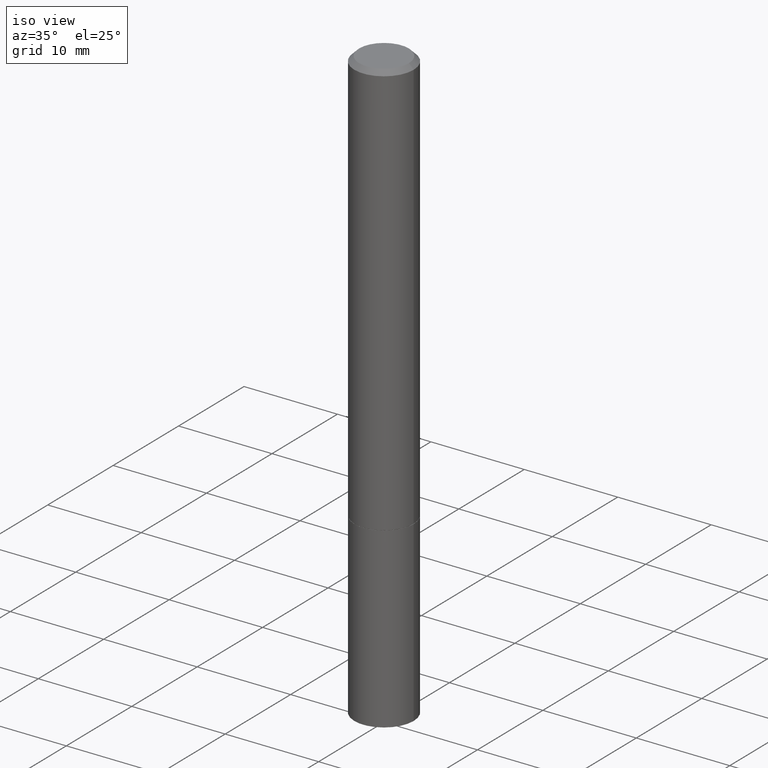
[diagram: clean part render]
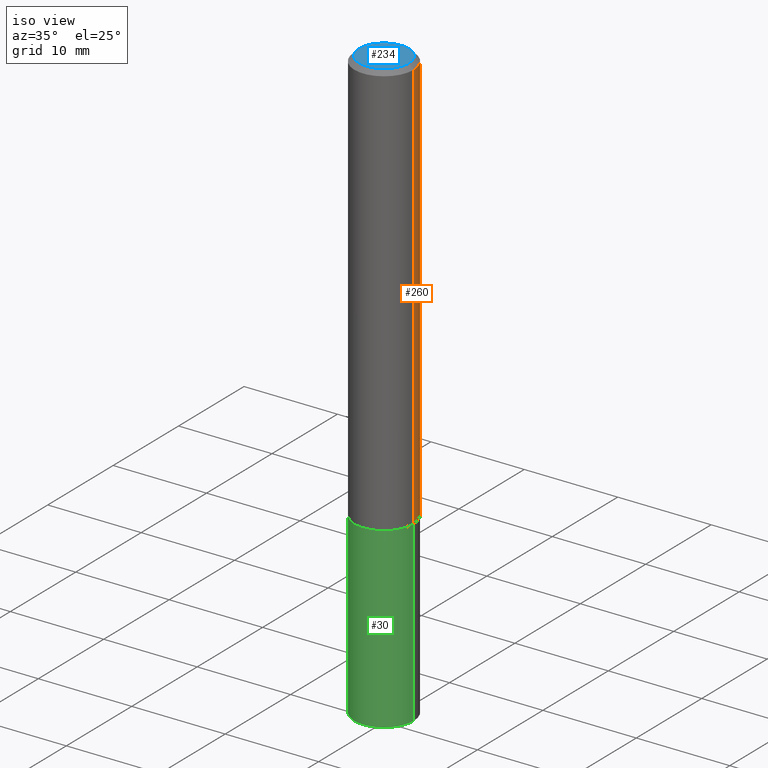
[diagram: same view with three faces highlighted in distinct colors, each labeled with its STEP entity id]
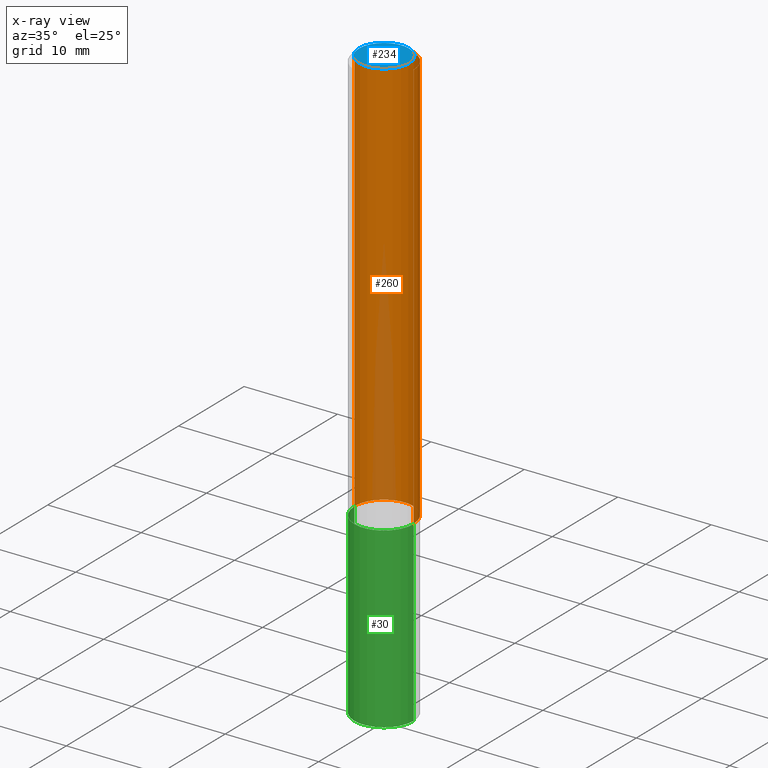
[diagram: x-ray of the same camera — body ghosted, the three highlighted faces saturated]
A machine part, iso view with three faces highlighted in distinct colors.
The next image is the same camera in x-ray (body ghosted, the three faces saturated) — at least one of them is partly hidden behind the body in this view.
Their STEP definitions:

[orange] entity #260 — the highlighted cylindrical surface (edge-blend (fillet) strip) has radius 3.175 mm, axis along (-0, 0, 1).
#7 = LINE ( 'NONE', #36, #279 ) ;
#11 = AXIS2_PLACEMENT_3D ( 'NONE', #98, #213, #101 ) ;
#33 = ORIENTED_EDGE ( 'NONE', *, *, #348, .F. ) ;
#36 = CARTESIAN_POINT ( 'NONE',  ( -0.1249999999999999029, 8.881784197001245421E-16, -6.148668862818627323E-30 ) ) ;
#48 = EDGE_LOOP ( 'NONE', ( #162, #124, #33, #360 ) ) ;
#52 = CARTESIAN_POINT ( 'NONE',  ( 0.1249999999999997918, -9.273918764983031658E-16, -0.02000000000000003511 ) ) ;
#69 = VERTEX_POINT ( 'NONE', #350 ) ;
#72 = EDGE_CURVE ( 'NONE', #69, #93, #330, .T. ) ;
#81 = DIRECTION ( 'NONE',  ( 1.000000000000000000, -6.982962677686266711E-15, 4.876176775795935793E-29 ) ) ;
#92 = AXIS2_PLACEMENT_3D ( 'NONE', #167, #283, #278 ) ;
#93 = VERTEX_POINT ( 'NONE', #106 ) ;
#98 = CARTESIAN_POINT ( 'NONE',  ( 4.277124942017804562E-29, -6.106600861636661664E-15, -1.749000000000000110 ) ) ;
#101 = DIRECTION ( 'NONE',  ( 1.000000000000000000, -6.982962677686270655E-15, 0.000000000000000000 ) ) ;
#106 = CARTESIAN_POINT ( 'NONE',  ( -0.1250000000000000278, -2.200036824506634488E-15, -1.749000000000000110 ) ) ;
#113 = CYLINDRICAL_SURFACE ( 'NONE', #226, 0.1249999999999999029 ) ;
#124 = ORIENTED_EDGE ( 'NONE', *, *, #274, .T. ) ;
#162 = ORIENTED_EDGE ( 'NONE', *, *, #72, .T. ) ;
#167 = CARTESIAN_POINT ( 'NONE',  ( 4.890937612370281041E-31, -6.982962677686302702E-17, -0.02000000000000003511 ) ) ;
#188 = DIRECTION ( 'NONE',  ( -2.445468806185136877E-29, 3.491481338843145188E-15, 1.000000000000000000 ) ) ;
#200 = VECTOR ( 'NONE', #250, 39.37007874015748143 ) ;
#206 = VERTEX_POINT ( 'NONE', #323 ) ;
#213 = DIRECTION ( 'NONE',  ( -2.445468806185136597E-29, 3.491481338843145583E-15, 1.000000000000000000 ) ) ;
#224 = CARTESIAN_POINT ( 'NONE',  ( 0.000000000000000000, 0.000000000000000000, 0.000000000000000000 ) ) ;
#226 = AXIS2_PLACEMENT_3D ( 'NONE', #224, #337, #81 ) ;
#229 = CARTESIAN_POINT ( 'NONE',  ( 0.1249999999999999029, -8.728703347107826486E-16, 6.095220969744914837E-30 ) ) ;
#232 = CIRCLE ( 'NONE', #92, 0.1249999999999997918 ) ;
#250 = DIRECTION ( 'NONE',  ( -2.445468806185136877E-29, 3.491481338843145188E-15, 1.000000000000000000 ) ) ;
#260 = ADVANCED_FACE ( 'NONE', ( #316 ), #113, .T. ) ;
#274 = EDGE_CURVE ( 'NONE', #93, #206, #7, .T. ) ;
#278 = DIRECTION ( 'NONE',  ( 1.000000000000000000, -6.982962677686266711E-15, 0.000000000000000000 ) ) ;
#279 = VECTOR ( 'NONE', #188, 39.37007874015748143 ) ;
#283 = DIRECTION ( 'NONE',  ( -2.445468806185136597E-29, 3.491481338843145583E-15, 1.000000000000000000 ) ) ;
#311 = LINE ( 'NONE', #229, #200 ) ;
#315 = EDGE_CURVE ( 'NONE', #69, #344, #311, .T. ) ;
#316 = FACE_OUTER_BOUND ( 'NONE', #48, .T. ) ;
#323 = CARTESIAN_POINT ( 'NONE',  ( -0.1249999999999997918, 8.030407079339188573E-16, -0.02000000000000003511 ) ) ;
#330 = CIRCLE ( 'NONE', #11, 0.1250000000000000000 ) ;
#337 = DIRECTION ( 'NONE',  ( -2.445468806185136597E-29, 3.491481338843145583E-15, 1.000000000000000000 ) ) ;
#344 = VERTEX_POINT ( 'NONE', #52 ) ;
#348 = EDGE_CURVE ( 'NONE', #344, #206, #232, .T. ) ;
#350 = CARTESIAN_POINT ( 'NONE',  ( 0.1250000000000000000, -6.979471196347445792E-15, -1.749000000000000110 ) ) ;
#360 = ORIENTED_EDGE ( 'NONE', *, *, #315, .F. ) ;

[blue] entity #234 — the highlighted planar face has unit normal (0, -0, -1).
#5 = VERTEX_POINT ( 'NONE', #194 ) ;
#9 = VERTEX_POINT ( 'NONE', #284 ) ;
#34 = DIRECTION ( 'NONE',  ( -1.000000000000000000, 6.982962677686265922E-15, -4.876176775795935793E-29 ) ) ;
#90 = AXIS2_PLACEMENT_3D ( 'NONE', #347, #147, #34 ) ;
#102 = ORIENTED_EDGE ( 'NONE', *, *, #343, .T. ) ;
#114 = DIRECTION ( 'NONE',  ( 1.000000000000000000, -6.982962677686265922E-15, 4.876176775795935793E-29 ) ) ;
#115 = DIRECTION ( 'NONE',  ( 1.000000000000000000, -6.982962677686265922E-15, 4.876176775795935793E-29 ) ) ;
#117 = FACE_OUTER_BOUND ( 'NONE', #290, .T. ) ;
#140 = AXIS2_PLACEMENT_3D ( 'NONE', #202, #286, #115 ) ;
#147 = DIRECTION ( 'NONE',  ( 2.438088387897960049E-29, -3.491481338843145188E-15, -1.000000000000000000 ) ) ;
#178 = CIRCLE ( 'NONE', #244, 0.1049999999999998018 ) ;
#180 = PLANE ( 'NONE',  #90 ) ;
#194 = CARTESIAN_POINT ( 'NONE',  ( 0.1049999999999998018, -8.238720831321562839E-16, 5.444276250344140956E-30 ) ) ;
#196 = CARTESIAN_POINT ( 'NONE',  ( 0.000000000000000000, 0.000000000000000000, 0.000000000000000000 ) ) ;
#202 = CARTESIAN_POINT ( 'NONE',  ( 0.000000000000000000, 0.000000000000000000, 0.000000000000000000 ) ) ;
#216 = CIRCLE ( 'NONE', #140, 0.1049999999999998018 ) ;
#233 = ORIENTED_EDGE ( 'NONE', *, *, #292, .T. ) ;
#234 = ADVANCED_FACE ( 'NONE', ( #117 ), #180, .F. ) ;
#244 = AXIS2_PLACEMENT_3D ( 'NONE', #196, #255, #114 ) ;
#255 = DIRECTION ( 'NONE',  ( -2.445468806185136597E-29, 3.491481338843145583E-15, 1.000000000000000000 ) ) ;
#284 = CARTESIAN_POINT ( 'NONE',  ( -0.1049999999999998018, 7.681258945454876027E-16, -5.249639473182157468E-30 ) ) ;
#286 = DIRECTION ( 'NONE',  ( -2.445468806185136597E-29, 3.491481338843145583E-15, 1.000000000000000000 ) ) ;
#290 = EDGE_LOOP ( 'NONE', ( #102, #233 ) ) ;
#292 = EDGE_CURVE ( 'NONE', #5, #9, #216, .T. ) ;
#343 = EDGE_CURVE ( 'NONE', #9, #5, #178, .T. ) ;
#347 = CARTESIAN_POINT ( 'NONE',  ( 7.332110811570565452E-16, 0.1049999999999998018, -3.666055405785296038E-16 ) ) ;

[green] entity #30 — the highlighted cylindrical surface (edge-blend (fillet) strip) has radius 3.175 mm, axis along (-0, 0, 1).
#14 = VERTEX_POINT ( 'NONE', #366 ) ;
#26 = FACE_OUTER_BOUND ( 'NONE', #152, .T. ) ;
#30 = ADVANCED_FACE ( 'NONE', ( #26 ), #258, .T. ) ;
#39 = EDGE_CURVE ( 'NONE', #298, #248, #321, .T. ) ;
#54 = DIRECTION ( 'NONE',  ( 1.000000000000000000, -6.982962677686262766E-15, 0.000000000000000000 ) ) ;
#59 = VECTOR ( 'NONE', #125, 39.37007874015748143 ) ;
#62 = ORIENTED_EDGE ( 'NONE', *, *, #39, .F. ) ;
#68 = CIRCLE ( 'NONE', #241, 0.1250000000000000000 ) ;
#82 = EDGE_CURVE ( 'NONE', #346, #248, #267, .T. ) ;
#84 = CARTESIAN_POINT ( 'NONE',  ( 4.279570410823989044E-29, -6.110092342975505460E-15, -1.750000000000000222 ) ) ;
#118 = ORIENTED_EDGE ( 'NONE', *, *, #266, .F. ) ;
#119 = DIRECTION ( 'NONE',  ( 1.000000000000000000, -6.982962677686270655E-15, 0.000000000000000000 ) ) ;
#122 = AXIS2_PLACEMENT_3D ( 'NONE', #84, #364, #54 ) ;
#125 = DIRECTION ( 'NONE',  ( -2.445468806185136877E-29, 3.491481338843145188E-15, 1.000000000000000000 ) ) ;
#129 = ORIENTED_EDGE ( 'NONE', *, *, #82, .T. ) ;
#135 = VECTOR ( 'NONE', #211, 39.37007874015748143 ) ;
#152 = EDGE_LOOP ( 'NONE', ( #118, #187, #129, #62 ) ) ;
#155 = CARTESIAN_POINT ( 'NONE',  ( 0.1250000000000000000, -8.728703347107833388E-16, 6.095220969744919741E-30 ) ) ;
#169 = CARTESIAN_POINT ( 'NONE',  ( -0.1250000000000000000, -6.531219425341559180E-15, -1.750000000000000222 ) ) ;
#170 = CARTESIAN_POINT ( 'NONE',  ( 0.1250000000000000000, -9.601573681818648281E-15, -2.500000000000000000 ) ) ;
#173 = DIRECTION ( 'NONE',  ( -2.445468806185136597E-29, 3.491481338843145583E-15, 1.000000000000000000 ) ) ;
#174 = CARTESIAN_POINT ( 'NONE',  ( -0.1250000000000000000, 8.881784197001252323E-16, -6.148668862818632227E-30 ) ) ;
#187 = ORIENTED_EDGE ( 'NONE', *, *, #353, .T. ) ;
#197 = DIRECTION ( 'NONE',  ( 1.000000000000000000, -6.982962677686266711E-15, 4.876176775795935793E-29 ) ) ;
#211 = DIRECTION ( 'NONE',  ( -2.445468806185136877E-29, 3.491481338843145188E-15, 1.000000000000000000 ) ) ;
#221 = CARTESIAN_POINT ( 'NONE',  ( 0.000000000000000000, 0.000000000000000000, 0.000000000000000000 ) ) ;
#223 = CARTESIAN_POINT ( 'NONE',  ( 6.113672015462842613E-29, -8.728703347107864943E-15, -2.500000000000000000 ) ) ;
#238 = AXIS2_PLACEMENT_3D ( 'NONE', #221, #336, #197 ) ;
#241 = AXIS2_PLACEMENT_3D ( 'NONE', #223, #173, #119 ) ;
#248 = VERTEX_POINT ( 'NONE', #295 ) ;
#258 = CYLINDRICAL_SURFACE ( 'NONE', #238, 0.1250000000000000000 ) ;
#263 = LINE ( 'NONE', #174, #135 ) ;
#266 = EDGE_CURVE ( 'NONE', #14, #298, #263, .T. ) ;
#267 = LINE ( 'NONE', #155, #59 ) ;
#295 = CARTESIAN_POINT ( 'NONE',  ( 0.1250000000000000000, -6.982962677686288010E-15, -1.750000000000000222 ) ) ;
#298 = VERTEX_POINT ( 'NONE', #169 ) ;
#321 = CIRCLE ( 'NONE', #122, 0.1250000000000000000 ) ;
#336 = DIRECTION ( 'NONE',  ( -2.445468806185136597E-29, 3.491481338843145583E-15, 1.000000000000000000 ) ) ;
#346 = VERTEX_POINT ( 'NONE', #170 ) ;
#353 = EDGE_CURVE ( 'NONE', #14, #346, #68, .T. ) ;
#364 = DIRECTION ( 'NONE',  ( -2.445468806185136597E-29, 3.491481338843145583E-15, 1.000000000000000000 ) ) ;
#366 = CARTESIAN_POINT ( 'NONE',  ( -0.1250000000000000000, -6.531219425341559180E-15, -2.500000000000000000 ) ) ;